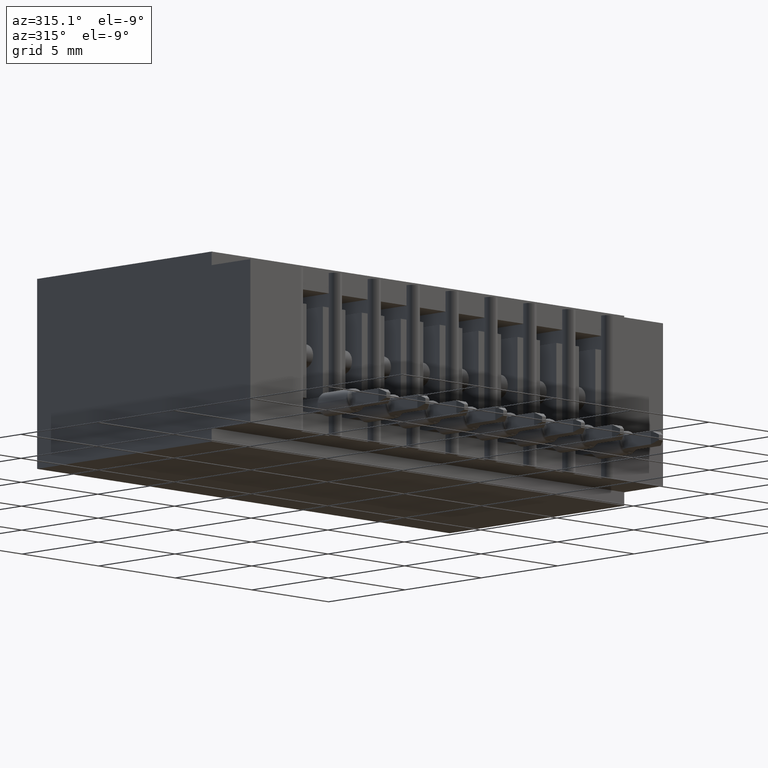
[diagram: clean part render]
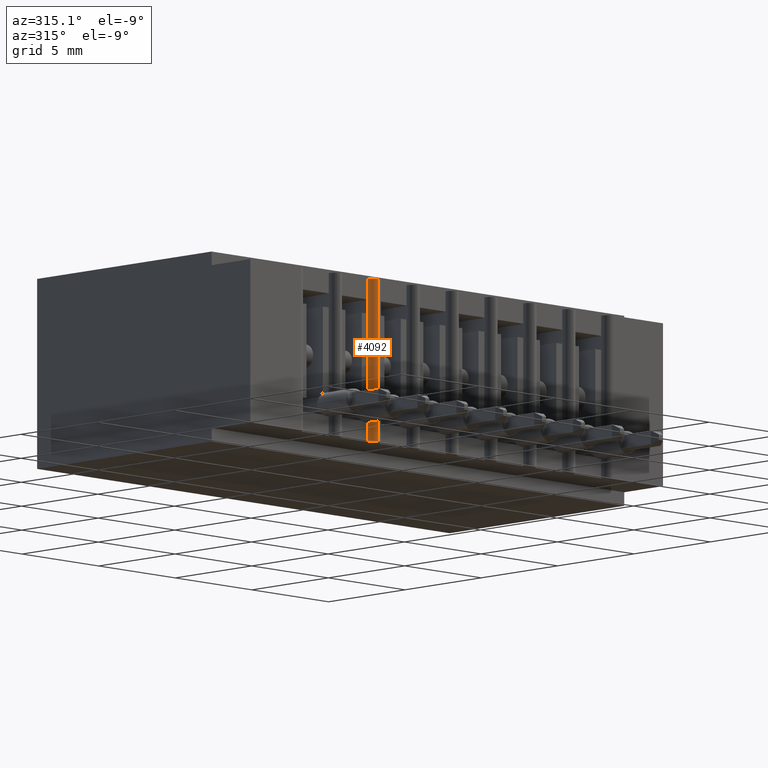
[diagram: same view with one face highlighted and labeled with its STEP entity id]
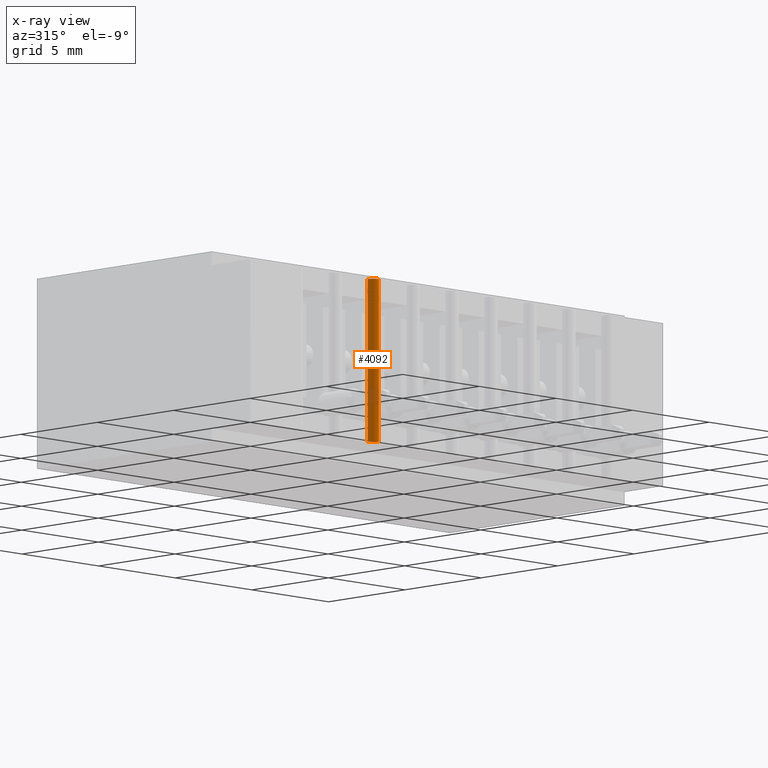
[diagram: x-ray of the same camera — body ghosted, the highlighted face saturated]
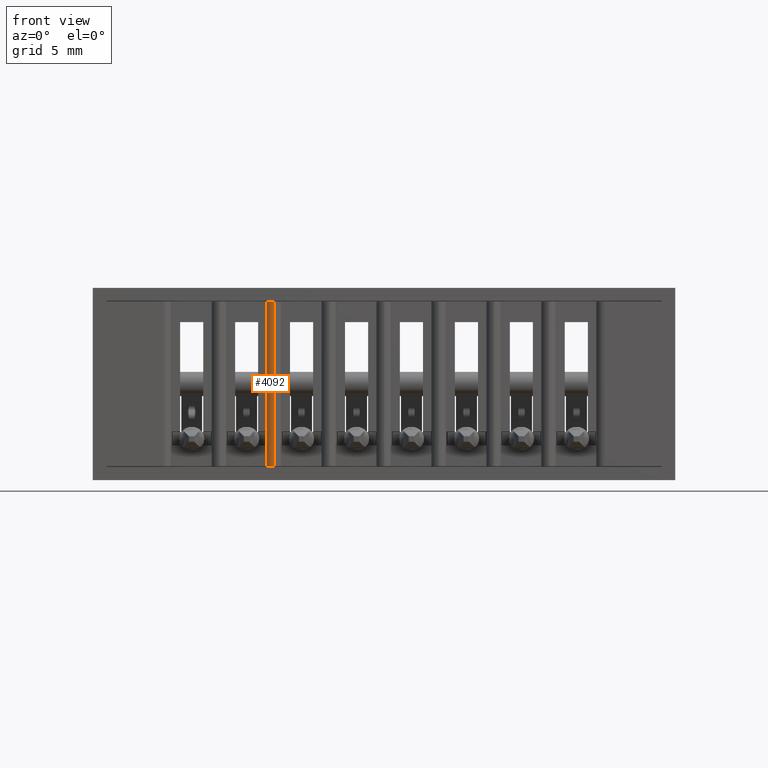
[diagram: same view with one face highlighted and labeled with its STEP entity id]
A machine part, auxiliary view. The second image highlights one B-rep face of the part: STEP entity #4092.
The next image is the same camera in x-ray: the body ghosted, the highlighted face saturated — about 10% of this face is hidden behind the body in this view.
A second angle (front view) of the same face is appended — the face is thin or edge-on in the first view.
In plain terms, the highlighted cylindrical surface (edge-blend (fillet) strip) has radius 0.381 mm, axis along (0, 0, 1).
Its self-contained STEP definition (entity closure, byte-faithful):
#117 = CARTESIAN_POINT ( 'NONE',  ( 0.3159999999999997300, 0.01499999999999993200, -0.3499999999999999800 ) ) ;
#864 = CARTESIAN_POINT ( 'NONE',  ( 0.3159999999999997300, 0.01500000000000002700, -0.2615000000000001800 ) ) ;
#1595 = CIRCLE ( 'NONE', #14282, 0.01499999999999997700 ) ;
#1947 = VERTEX_POINT ( 'NONE', #2994 ) ;
#2102 = ORIENTED_EDGE ( 'NONE', *, *, #15163, .F. ) ;
#2227 = VERTEX_POINT ( 'NONE', #864 ) ;
#2994 = CARTESIAN_POINT ( 'NONE',  ( 0.3159999999999997300, 0.01499999999999998900, -0.06250000000000002800 ) ) ;
#3041 = EDGE_CURVE ( 'NONE', #4859, #9389, #17403, .T. ) ;
#3135 = ORIENTED_EDGE ( 'NONE', *, *, #9057, .F. ) ;
#3779 = VECTOR ( 'NONE', #17016, 39.37007874015748100 ) ;
#4092 = ADVANCED_FACE ( 'NONE', ( #17165 ), #9904, .T. ) ;
#4330 = ORIENTED_EDGE ( 'NONE', *, *, #15575, .F. ) ;
#4377 = EDGE_LOOP ( 'NONE', ( #10133, #10651, #8629, #13393, #3135, #4330, #16021, #2102 ) ) ;
#4856 = LINE ( 'NONE', #17141, #8095 ) ;
#4859 = VERTEX_POINT ( 'NONE', #10114 ) ;
#5580 = CARTESIAN_POINT ( 'NONE',  ( 0.3299999999999992400, 3.337045290419808700E-005, -0.3249999999999999600 ) ) ;
#6121 = VECTOR ( 'NONE', #17340, 39.37007874015748100 ) ;
#6559 = CARTESIAN_POINT ( 'NONE',  ( 0.3159999999999997300, 0.01499999999999993200, -0.08849999999999995400 ) ) ;
#6909 = CARTESIAN_POINT ( 'NONE',  ( 0.3309999999999996800, 0.01499999999999991600, -0.3249999999999999600 ) ) ;
#7179 = DIRECTION ( 'NONE',  ( -0.0000000000000000000, -0.0000000000000000000, 1.000000000000000000 ) ) ;
#7220 = EDGE_CURVE ( 'NONE', #4859, #10387, #11530, .T. ) ;
#8095 = VECTOR ( 'NONE', #10274, 39.37007874015748100 ) ;
#8289 = DIRECTION ( 'NONE',  ( 0.0000000000000000000, -0.0000000000000000000, -1.000000000000000000 ) ) ;
#8317 = DIRECTION ( 'NONE',  ( 1.000000000000000000, 0.0000000000000000000, 0.0000000000000000000 ) ) ;
#8484 = VERTEX_POINT ( 'NONE', #16762 ) ;
#8629 = ORIENTED_EDGE ( 'NONE', *, *, #13552, .F. ) ;
#9057 = EDGE_CURVE ( 'NONE', #2227, #10288, #17779, .T. ) ;
#9389 = VERTEX_POINT ( 'NONE', #9442 ) ;
#9390 = DIRECTION ( 'NONE',  ( 1.000000000000000000, 0.0000000000000000000, 0.0000000000000000000 ) ) ;
#9442 = CARTESIAN_POINT ( 'NONE',  ( 0.3159999999999997300, 0.01499999999999993200, -0.02500000000000000500 ) ) ;
#9793 = VECTOR ( 'NONE', #12832, 39.37007874015748100 ) ;
#9891 = CARTESIAN_POINT ( 'NONE',  ( 0.3159999999999997300, 0.01499999999999993200, -0.3249999999999999600 ) ) ;
#9904 = CYLINDRICAL_SURFACE ( 'NONE', #16998, 0.01499999999999997700 ) ;
#10099 = CARTESIAN_POINT ( 'NONE',  ( 0.3159999999999997300, 0.01499999999999993200, -0.3499999999999999800 ) ) ;
#10114 = CARTESIAN_POINT ( 'NONE',  ( 0.3299999999999992400, 3.337045290420235600E-005, -0.02500000000000000500 ) ) ;
#10133 = ORIENTED_EDGE ( 'NONE', *, *, #7220, .F. ) ;
#10219 = LINE ( 'NONE', #10099, #9793 ) ;
#10242 = LINE ( 'NONE', #15963, #6121 ) ;
#10274 = DIRECTION ( 'NONE',  ( -0.0000000000000000000, -0.0000000000000000000, 1.000000000000000000 ) ) ;
#10288 = VERTEX_POINT ( 'NONE', #6559 ) ;
#10387 = VERTEX_POINT ( 'NONE', #5580 ) ;
#10461 = VERTEX_POINT ( 'NONE', #9891 ) ;
#10651 = ORIENTED_EDGE ( 'NONE', *, *, #3041, .T. ) ;
#11530 = LINE ( 'NONE', #15653, #3779 ) ;
#12391 = EDGE_CURVE ( 'NONE', #10461, #8484, #4856, .T. ) ;
#12656 = CARTESIAN_POINT ( 'NONE',  ( 0.3159999999999997300, 0.01499999999999993200, -0.3499999999999999800 ) ) ;
#12832 = DIRECTION ( 'NONE',  ( -0.0000000000000000000, -0.0000000000000000000, 1.000000000000000000 ) ) ;
#13393 = ORIENTED_EDGE ( 'NONE', *, *, #16040, .F. ) ;
#13552 = EDGE_CURVE ( 'NONE', #1947, #9389, #14234, .T. ) ;
#13798 = VECTOR ( 'NONE', #15288, 39.37007874015748100 ) ;
#14135 = VECTOR ( 'NONE', #7179, 39.37007874015748100 ) ;
#14234 = LINE ( 'NONE', #117, #13798 ) ;
#14282 = AXIS2_PLACEMENT_3D ( 'NONE', #6909, #16506, #8317 ) ;
#15163 = EDGE_CURVE ( 'NONE', #10387, #10461, #1595, .T. ) ;
#15262 = AXIS2_PLACEMENT_3D ( 'NONE', #16492, #8289, #17843 ) ;
#15288 = DIRECTION ( 'NONE',  ( -0.0000000000000000000, -0.0000000000000000000, 1.000000000000000000 ) ) ;
#15575 = EDGE_CURVE ( 'NONE', #8484, #2227, #10242, .T. ) ;
#15653 = CARTESIAN_POINT ( 'NONE',  ( 0.3299999999999992400, 3.337045290419808700E-005, -0.1874999999999999700 ) ) ;
#15963 = CARTESIAN_POINT ( 'NONE',  ( 0.3159999999999997300, 0.01499999999999993200, -0.3499999999999999800 ) ) ;
#16021 = ORIENTED_EDGE ( 'NONE', *, *, #12391, .F. ) ;
#16040 = EDGE_CURVE ( 'NONE', #10288, #1947, #10219, .T. ) ;
#16187 = DIRECTION ( 'NONE',  ( -0.0000000000000000000, -0.0000000000000000000, 1.000000000000000000 ) ) ;
#16492 = CARTESIAN_POINT ( 'NONE',  ( 0.3309999999999996800, 0.01499999999999991600, -0.02500000000000000500 ) ) ;
#16506 = DIRECTION ( 'NONE',  ( -0.0000000000000000000, -0.0000000000000000000, -1.000000000000000000 ) ) ;
#16762 = CARTESIAN_POINT ( 'NONE',  ( 0.3159999999999997300, 0.01499999999999993200, -0.2875000000000000900 ) ) ;
#16998 = AXIS2_PLACEMENT_3D ( 'NONE', #17566, #16187, #9390 ) ;
#17016 = DIRECTION ( 'NONE',  ( 0.0000000000000000000, 0.0000000000000000000, -1.000000000000000000 ) ) ;
#17141 = CARTESIAN_POINT ( 'NONE',  ( 0.3159999999999997300, 0.01499999999999993200, -0.3499999999999999800 ) ) ;
#17165 = FACE_OUTER_BOUND ( 'NONE', #4377, .T. ) ;
#17340 = DIRECTION ( 'NONE',  ( -0.0000000000000000000, -0.0000000000000000000, 1.000000000000000000 ) ) ;
#17403 = CIRCLE ( 'NONE', #15262, 0.01499999999999997700 ) ;
#17566 = CARTESIAN_POINT ( 'NONE',  ( 0.3309999999999996800, 0.01499999999999991600, -0.3499999999999999800 ) ) ;
#17779 = LINE ( 'NONE', #12656, #14135 ) ;
#17843 = DIRECTION ( 'NONE',  ( 1.000000000000000000, 0.0000000000000000000, 0.0000000000000000000 ) ) ;